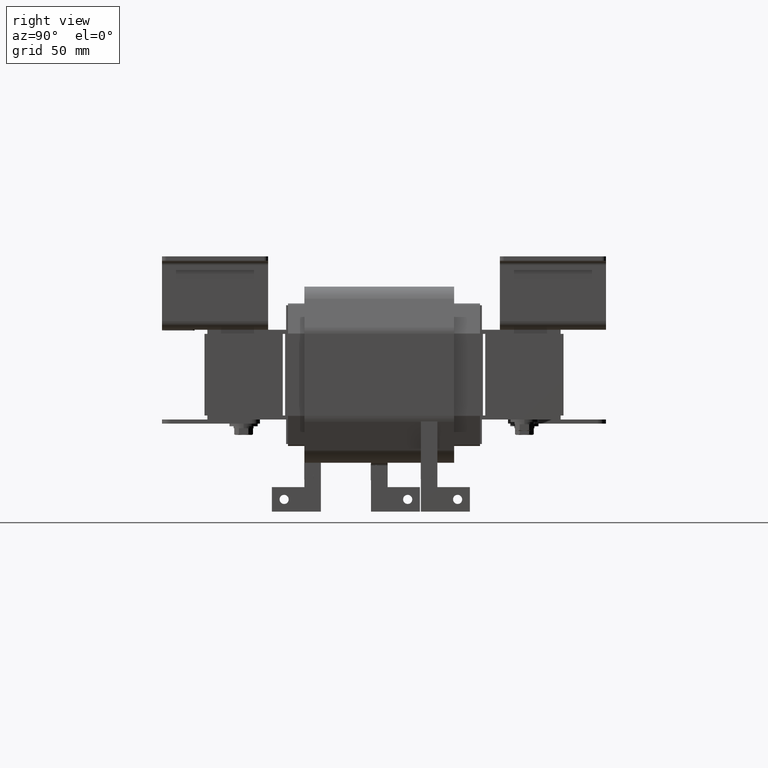
[diagram: clean part render]
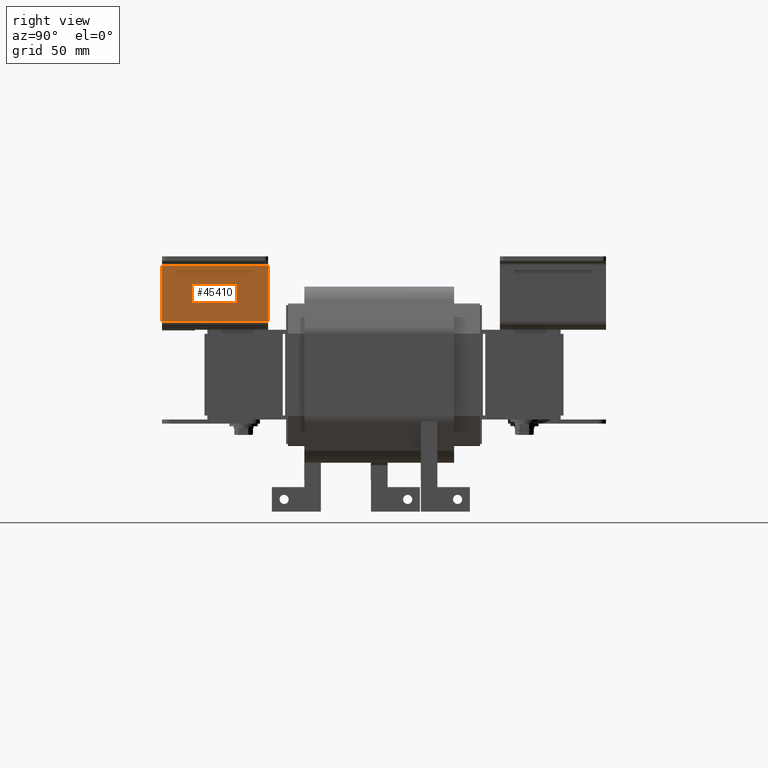
[diagram: same view with one face highlighted and labeled with its STEP entity id]
A machine part, right view. The second image highlights one B-rep face of the part: STEP entity #45410.
In plain terms, the highlighted planar face has unit normal (1, -0, 0).
Its self-contained STEP definition (entity closure, byte-faithful):
#3847=PLANE('',#48950);
#6010=FACE_OUTER_BOUND('',#8609,.T.);
#8609=EDGE_LOOP('',(#41079,#41080,#41081,#41082));
#12951=LINE('',#78473,#17232);
#12952=LINE('',#78476,#17233);
#12955=LINE('',#78482,#17236);
#12956=LINE('',#78483,#17237);
#17232=VECTOR('',#58715,0.393700787401575);
#17233=VECTOR('',#58718,0.19368);
#17236=VECTOR('',#58723,0.19368);
#17237=VECTOR('',#58724,0.393700787401575);
#22425=VERTEX_POINT('',#78462);
#22426=VERTEX_POINT('',#78466);
#22427=VERTEX_POINT('',#78475);
#22429=VERTEX_POINT('',#78481);
#28735=EDGE_CURVE('',#22425,#22426,#12951,.T.);
#28736=EDGE_CURVE('',#22427,#22425,#12952,.T.);
#28739=EDGE_CURVE('',#22429,#22426,#12955,.T.);
#28740=EDGE_CURVE('',#22429,#22427,#12956,.T.);
#41079=ORIENTED_EDGE('',*,*,#28735,.T.);
#41080=ORIENTED_EDGE('',*,*,#28739,.F.);
#41081=ORIENTED_EDGE('',*,*,#28740,.T.);
#41082=ORIENTED_EDGE('',*,*,#28736,.T.);
#45410=ADVANCED_FACE('',(#6010),#3847,.T.);
#48950=AXIS2_PLACEMENT_3D('',#78480,#58721,#58722);
#58715=DIRECTION('',(-1.6545838799023E-15,1.,1.2911133902364E-15));
#58718=DIRECTION('',(-8.88178419700125E-15,3.06161699786834E-16,-1.));
#58721=DIRECTION('center_axis',(1.,1.65458387990231E-15,-9.37210918415737E-15));
#58722=DIRECTION('ref_axis',(-9.37210918415736E-15,-4.30371130078805E-16,
-1.));
#58723=DIRECTION('',(-1.61035219745524E-14,3.06161699786831E-16,-1.));
#58724=DIRECTION('',(1.65458387990231E-15,-1.,-1.07982320438726E-29));
#78462=CARTESIAN_POINT('',(12.,-4.3498980099138E-16,-1.84650000000001));
#78466=CARTESIAN_POINT('',(12.,3.25,-1.8465));
#78473=CARTESIAN_POINT('',(12.,2.4375,-1.8465));
#78475=CARTESIAN_POINT('',(12.,9.26343979866543E-17,-0.134500000000005));
#78476=CARTESIAN_POINT('',(12.,-9.36538719933598E-17,0.473963665147265));
#78480=CARTESIAN_POINT('Origin',(12.,1.625,-0.972884083713183));
#78481=CARTESIAN_POINT('',(12.,3.25,-0.134500000000004));
#78482=CARTESIAN_POINT('',(12.,3.25,0.473963665147265));
#78483=CARTESIAN_POINT('',(12.,1.625,-0.134500000000002));